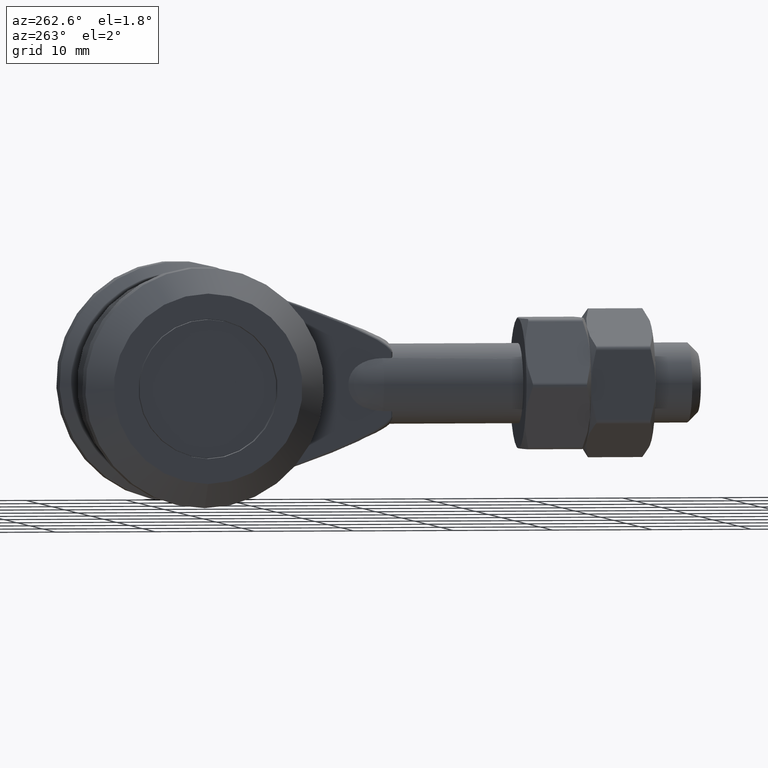
[diagram: clean part render]
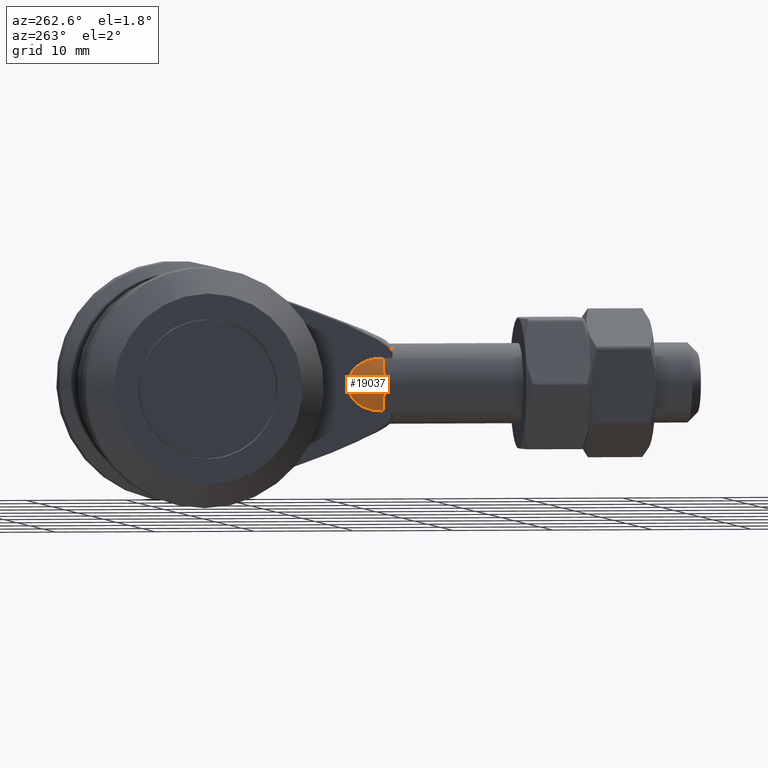
[diagram: same view with one face highlighted and labeled with its STEP entity id]
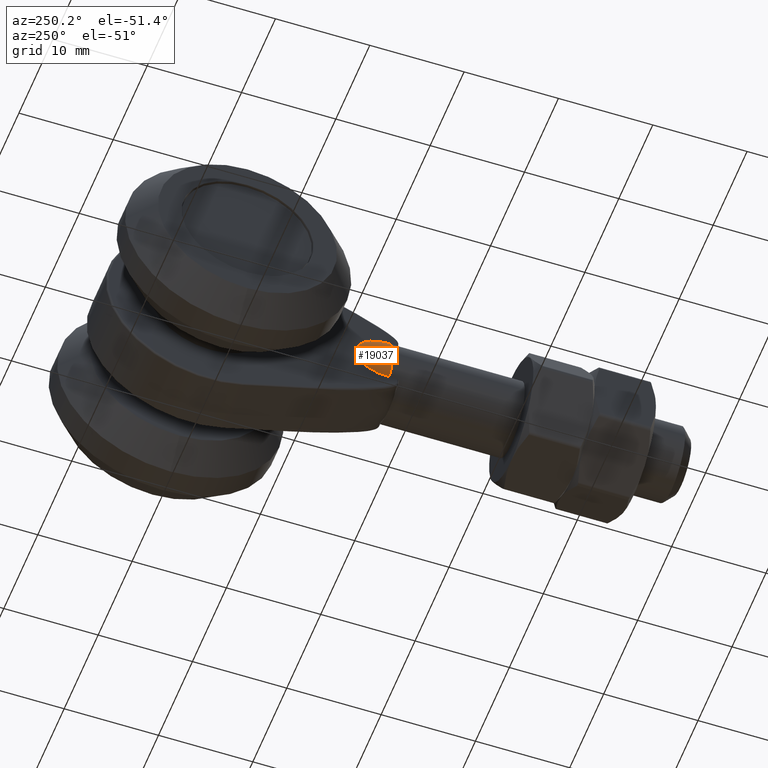
[diagram: same view with one face highlighted and labeled with its STEP entity id]
A machine part, auxiliary view. The second image highlights one B-rep face of the part: STEP entity #19037.
A second angle (auxiliary view) of the same face is appended — the face is thin or edge-on in the first view.
In plain terms, the highlighted face is a freeform B-spline surface patch.
Its self-contained STEP definition (entity closure, byte-faithful):
#23 = FACE_OUTER_BOUND ( 'NONE', #10895, .T. ) ;
#54 = CARTESIAN_POINT ( 'NONE',  ( -2.999999999999999556, 2.292484922831933503, 2.480516872358675240 ) ) ;
#132 = CARTESIAN_POINT ( 'NONE',  ( -2.999966724656594863, 1.000000000000000888, 2.645721993308703723 ) ) ;
#1726 = CARTESIAN_POINT ( 'NONE',  ( -2.801117155337090825, 1.000000000000000888, -2.855475911661004229 ) ) ;
#1819 = CARTESIAN_POINT ( 'NONE',  ( -4.000000000000000000, 5.000000000000000888, -0.5300050929796380483 ) ) ;
#1842 = CARTESIAN_POINT ( 'NONE',  ( -3.000000000000000000, 3.252040014901770970, -2.083968030416484929 ) ) ;
#1914 = CARTESIAN_POINT ( 'NONE',  ( -1.589771477552348378, 5.000000000000000888, 1.242127039715156922 ) ) ;
#1938 = CARTESIAN_POINT ( 'NONE',  ( -2.999999999999999556, 3.344298271523783672, 2.026482346643453170 ) ) ;
#2002 = CARTESIAN_POINT ( 'NONE',  ( -3.893295219945717367, 1.000000000000000888, -1.059791361038660895 ) ) ;
#2024 = CARTESIAN_POINT ( 'NONE',  ( -3.000000000000001332, 3.303120444321818727, -2.052609402434485197 ) ) ;
#2143 = CARTESIAN_POINT ( 'NONE',  ( -3.000000000000000888, 1.208003568990168031, -2.645617139306791099 ) ) ;
#2206 = CARTESIAN_POINT ( 'NONE',  ( -3.000000000000000000, 1.514114254134176774, -2.627898901829841538 ) ) ;
#2294 = CARTESIAN_POINT ( 'NONE',  ( -2.999999999999999556, 1.000000000000000888, -2.645684225185693794 ) ) ;
#3017 = EDGE_CURVE ( 'NONE', #25112, #25360, #13644, .T. ) ;
#3890 = CARTESIAN_POINT ( 'NONE',  ( -3.179542955116319014, 1.000000000000000888, -2.484254079442095975 ) ) ;
#4008 = CARTESIAN_POINT ( 'NONE',  ( -2.999999999999999112, 4.464031913044484767, -0.4311094259676741536 ) ) ;
#4073 = CARTESIAN_POINT ( 'NONE',  ( -1.946647609972841808, 5.000000000000000888, 0.5298956805193257846 ) ) ;
#4172 = CARTESIAN_POINT ( 'NONE',  ( -4.000000000000001776, 1.000000000000000888, 0.5300050929796132904 ) ) ;
#4199 = CARTESIAN_POINT ( 'NONE',  ( -3.000000000000000888, 3.282748533349392428, -2.065211558942082082 ) ) ;
#4298 = CARTESIAN_POINT ( 'NONE',  ( -3.000000000000000444, 4.318707849288117018, 0.8573695871280787584 ) ) ;
#4388 = CARTESIAN_POINT ( 'NONE',  ( -2.999999999999999556, 4.258349620314388240, 0.9950479624394135136 ) ) ;
#5704 = ORIENTED_EDGE ( 'NONE', *, *, #3017, .F. ) ;
#6071 = CARTESIAN_POINT ( 'NONE',  ( -2.801117155337091269, 5.000000000000000888, -2.855475911661004229 ) ) ;
#6187 = CARTESIAN_POINT ( 'NONE',  ( -3.000000000000000888, 4.118911614975183433, -1.256882310745639275 ) ) ;
#6346 = CARTESIAN_POINT ( 'NONE',  ( -3.179542955116301695, 1.000000000000000888, 2.484254079442108409 ) ) ;
#6372 = CARTESIAN_POINT ( 'NONE',  ( -3.000000000000000000, 1.860927717205011378, -2.576220709188743463 ) ) ;
#6456 = CARTESIAN_POINT ( 'NONE',  ( -2.999999999999999556, 3.980548497194730917, -1.460448373147256618 ) ) ;
#6561 = CARTESIAN_POINT ( 'NONE',  ( -3.000000000000000888, 2.116524709059369069, -2.523896539139633965 ) ) ;
#7163 = CARTESIAN_POINT ( 'NONE',  ( -2.999966724656594863, 1.000000000000000888, 2.645721993308703723 ) ) ;
#7455 = CARTESIAN_POINT ( 'NONE',  ( -2.999999999999999556, 1.000000000000000888, -2.645684225185693794 ) ) ;
#8415 = CARTESIAN_POINT ( 'NONE',  ( -3.893295219945684060, 5.000000000000000888, 1.059791361038652013 ) ) ;
#8437 = CARTESIAN_POINT ( 'NONE',  ( -2.999999999999999556, 4.464136415850235906, 0.2149323789062456413 ) ) ;
#8501 = CARTESIAN_POINT ( 'NONE',  ( -3.482946183553531139, 5.000000000000000888, -2.037152738764129278 ) ) ;
#8531 = CARTESIAN_POINT ( 'NONE',  ( -3.000000000000001332, 2.226751610837167217, 2.497452899783727531 ) ) ;
#8711 = CARTESIAN_POINT ( 'NONE',  ( -3.000000000000000000, 2.383321373457846892, 2.455645916619531022 ) ) ;
#9602 = B_SPLINE_CURVE_WITH_KNOTS ( 'NONE', 3,
 ( #132, #26175, #25992, #13170, #21738, #13257, #26084, #17514, #15140, #2294 ),
 .UNSPECIFIED., .F., .F.,
 ( 4, 2, 2, 2, 4 ),
 ( 0.000000000000000000, 0.2500000000000000555, 0.5000000000000001110, 0.7500000000000002220, 1.000000000000000000 ),
 .UNSPECIFIED. ) ;
#10274 = CARTESIAN_POINT ( 'NONE',  ( -3.482946183553597308, 5.000000000000000888, 2.037152738764079096 ) ) ;
#10364 = CARTESIAN_POINT ( 'NONE',  ( -3.893295219945712482, 1.000000000000000888, 1.059791361038663338 ) ) ;
#10534 = CARTESIAN_POINT ( 'NONE',  ( -3.999999999999998224, 1.000000000000000888, -0.5300050929796380483 ) ) ;
#10557 = CARTESIAN_POINT ( 'NONE',  ( -2.999999999999999556, 3.331261948417209240, 2.034845937965227058 ) ) ;
#10649 = CARTESIAN_POINT ( 'NONE',  ( -2.999999999999999556, 3.753617574725310213, -1.725391850318085174 ) ) ;
#10838 = CARTESIAN_POINT ( 'NONE',  ( -3.000000000000000000, 4.191121779834859673, 1.131485341543227774 ) ) ;
#10895 = EDGE_LOOP ( 'NONE', ( #5704, #15906 ) ) ;
#11890 =( BOUNDED_SURFACE ( )  B_SPLINE_SURFACE ( 2, 3, ( 
 ( #14750, #19107, #25334, #20996, #18925, #27766, #4073, #27584, #1914, #16934 ),
 ( #6071, #14664, #8501, #21258, #1819, #23155, #8415, #10274, #12419, #14573 ),
 ( #1726, #3890, #23427, #2002, #10534, #4172, #10364, #16664, #6346, #25608 ) ),
 .UNSPECIFIED., .F., .F., .T. ) 
 B_SPLINE_SURFACE_WITH_KNOTS ( ( 3, 3 ),
 ( 4, 2, 2, 2, 4 ),
 ( 0.000000000000000000, 1.000000000000000000 ),
 ( 3.917381307789929767, 4.314885144087308610, 4.712388980384687898, 5.109892816682066297, 5.507396652979445584 ),
 .UNSPECIFIED. ) 
 GEOMETRIC_REPRESENTATION_ITEM ( )  RATIONAL_B_SPLINE_SURFACE ( (
 ( 1.000000000000000000, 1.000000000000000000, 1.000000000000000000, 1.000000000000000000, 1.000000000000000000, 1.000000000000000000, 1.000000000000000000, 1.000000000000000000, 1.000000000000000000, 1.000000000000000000),
 ( 0.7071067811865475727, 0.7071067811865475727, 0.7071067811865475727, 0.7071067811865475727, 0.7071067811865475727, 0.7071067811865475727, 0.7071067811865475727, 0.7071067811865475727, 0.7071067811865475727, 0.7071067811865475727),
 ( 1.000000000000000000, 1.000000000000000000, 1.000000000000000000, 1.000000000000000000, 1.000000000000000000, 1.000000000000000000, 1.000000000000000000, 1.000000000000000000, 1.000000000000000000, 1.000000000000000000) ) ) 
 REPRESENTATION_ITEM ( '' )  SURFACE ( )  );
#12419 = CARTESIAN_POINT ( 'NONE',  ( -3.179542955104754487, 5.000000000000000888, 2.484254079430373352 ) ) ;
#12808 = CARTESIAN_POINT ( 'NONE',  ( -3.000000000000000444, 3.892686654836617244, 1.582695916894487409 ) ) ;
#12904 = CARTESIAN_POINT ( 'NONE',  ( -3.000000000000000444, 4.070681701545312059, 1.345766521003569638 ) ) ;
#13170 = CARTESIAN_POINT ( 'NONE',  ( -3.912007480033965923, 1.000000000000000666, 0.9635095870317965661 ) ) ;
#13257 = CARTESIAN_POINT ( 'NONE',  ( -4.000000000000001776, 1.000000000000000888, -0.4818228389604209405 ) ) ;
#13644 = B_SPLINE_CURVE_WITH_KNOTS ( 'NONE', 3,
 ( #14993, #2143, #2206, #6372, #27702, #6561, #14686, #19412, #25826, #21285, #17052, #19319, #21559, #1842, #4199, #2024, #17237, #19042, #10649, #6456, #14876, #6187, #19133, #17138, #4008, #8437, #27886, #4298, #4388, #19224, #10838, #12904, #12808, #23548, #21378, #14778, #23457, #1938, #10557, #27798, #23643, #16864, #8711, #54, #25631, #8531, #21473, #23737, #21188, #25723 ),
 .UNSPECIFIED., .F., .F.,
 ( 4, 1, 1, 1, 1, 2, 2, 1, 1, 1, 1, 2, 2, 1, 1, 2, 2, 2, 1, 1, 2, 2, 1, 1, 1, 1, 2, 2, 1, 1, 1, 1, 2, 2, 4 ),
 ( 0.000000000000000000, 0.06249999999999678035, 0.09374999999999512890, 0.1093749999999944073, 0.1171874999999940603, 0.1210937499999939632, 0.1249999999999938660, 0.1874999999999936717, 0.2187499999999936717, 0.2343749999999936995, 0.2421874999999937550, 0.2460937499999936995, 0.2499999999999936717, 0.3124999999999935052, 0.3437499999999933942, 0.3593749999999933387, 0.3749999999999933387, 0.4999999999999936717, 0.5624999999999938938, 0.5937499999999938938, 0.6093749999999940048, 0.6249999999999941158, 0.6874999999999947820, 0.7187499999999950040, 0.7343749999999951150, 0.7421874999999952260, 0.7460937499999952260, 0.7499999999999952260, 0.8124999999999964473, 0.8437499999999971134, 0.8593749999999974465, 0.8671874999999976685, 0.8710937499999977796, 0.8749999999999978906, 1.000000000000000000 ),
 .UNSPECIFIED. ) ;
#14573 = CARTESIAN_POINT ( 'NONE',  ( -2.801117155337108588, 5.000000000000000888, 2.855475911660986910 ) ) ;
#14664 = CARTESIAN_POINT ( 'NONE',  ( -3.179542955104872615, 5.000000000000000888, -2.484254079430424866 ) ) ;
#14686 = CARTESIAN_POINT ( 'NONE',  ( -3.000000000000000444, 2.152716200363653076, -2.515452691592024781 ) ) ;
#14750 = CARTESIAN_POINT ( 'NONE',  ( -1.400558577668545412, 5.000000000000000888, -1.427737955830502337 ) ) ;
#14778 = CARTESIAN_POINT ( 'NONE',  ( -2.999999999999999556, 3.401164422600596815, 1.989067942337424011 ) ) ;
#14876 = CARTESIAN_POINT ( 'NONE',  ( -3.000000000000000888, 4.065241454799650711, -1.339319610169720454 ) ) ;
#14993 = CARTESIAN_POINT ( 'NONE',  ( -2.999999999999999556, 1.000000000000000888, -2.645684225185693794 ) ) ;
#15140 = CARTESIAN_POINT ( 'NONE',  ( -3.318695827693463940, 1.000000000000001554, -2.284384217112759963 ) ) ;
#15906 = ORIENTED_EDGE ( 'NONE', *, *, #21785, .F. ) ;
#16664 = CARTESIAN_POINT ( 'NONE',  ( -3.482946183553569330, 1.000000000000000888, 2.037152738764067550 ) ) ;
#16864 = CARTESIAN_POINT ( 'NONE',  ( -3.000000000000000000, 2.560793617650472864, 2.401808061573941444 ) ) ;
#16934 = CARTESIAN_POINT ( 'NONE',  ( -1.400558577668554072, 5.000000000000000888, 1.427737955830493455 ) ) ;
#17052 = CARTESIAN_POINT ( 'NONE',  ( -2.999999999999999556, 2.713557809624729700, -2.354366725851759323 ) ) ;
#17138 = CARTESIAN_POINT ( 'NONE',  ( -3.000000000000000000, 4.365462956423849405, -0.8202629013050121154 ) ) ;
#17237 = CARTESIAN_POINT ( 'NONE',  ( -3.000000000000000000, 3.311747263051441958, -2.047216761216223091 ) ) ;
#17514 = CARTESIAN_POINT ( 'NONE',  ( -3.571307278484772141, 1.000000000000000888, -1.864917577477774202 ) ) ;
#18925 = CARTESIAN_POINT ( 'NONE',  ( -2.000000000000000000, 5.000000000000000888, -0.2650025464898191907 ) ) ;
#19037 = ADVANCED_FACE ( 'NONE', ( #23 ), #11890, .T. ) ;
#19042 = CARTESIAN_POINT ( 'NONE',  ( -3.000000000000000444, 3.508852747366445701, -1.922160025418641727 ) ) ;
#19107 = CARTESIAN_POINT ( 'NONE',  ( -1.589771477552367696, 5.000000000000000888, -1.242127039715165360 ) ) ;
#19133 = CARTESIAN_POINT ( 'NONE',  ( -3.000000000000000000, 4.143760445482256749, -1.215874690645219580 ) ) ;
#19224 = CARTESIAN_POINT ( 'NONE',  ( -3.000000000000000000, 4.215014167425483294, 1.085611388241475517 ) ) ;
#19319 = CARTESIAN_POINT ( 'NONE',  ( -3.000000000000000000, 3.029698438308601638, -2.208071929674644274 ) ) ;
#19412 = CARTESIAN_POINT ( 'NONE',  ( -3.000000000000001332, 2.176813159835563116, -2.509731177406760327 ) ) ;
#20996 = CARTESIAN_POINT ( 'NONE',  ( -1.946647609972838033, 5.000000000000000888, -0.5298956805193218988 ) ) ;
#21188 = CARTESIAN_POINT ( 'NONE',  ( -2.999999999999999556, 1.415776721443928743, 2.645617139306787546 ) ) ;
#21258 = CARTESIAN_POINT ( 'NONE',  ( -3.893295219945732910, 5.000000000000000888, -1.059791361038643798 ) ) ;
#21285 = CARTESIAN_POINT ( 'NONE',  ( -3.000000000000000000, 2.413654946012142144, -2.451583714329473640 ) ) ;
#21378 = CARTESIAN_POINT ( 'NONE',  ( -2.999999999999999556, 3.478702780265114924, 1.935435300102777312 ) ) ;
#21473 = CARTESIAN_POINT ( 'NONE',  ( -3.000000000000000444, 2.212260402582558960, 2.501072625539312533 ) ) ;
#21559 = CARTESIAN_POINT ( 'NONE',  ( -2.999999999999999556, 3.179332241267835091, -2.126705787514473478 ) ) ;
#21738 = CARTESIAN_POINT ( 'NONE',  ( -4.000000000000000000, 1.000000000000000888, 0.4818228389604141126 ) ) ;
#21785 = EDGE_CURVE ( 'NONE', #25360, #25112, #9602, .T. ) ;
#23155 = CARTESIAN_POINT ( 'NONE',  ( -4.000000000000000000, 5.000000000000000888, 0.5300050929796132904 ) ) ;
#23427 = CARTESIAN_POINT ( 'NONE',  ( -3.482946183553548014, 1.000000000000000888, -2.037152738764111959 ) ) ;
#23457 = CARTESIAN_POINT ( 'NONE',  ( -2.999999999999999556, 3.367149316181887286, 2.011579734981859602 ) ) ;
#23548 = CARTESIAN_POINT ( 'NONE',  ( -3.000000000000000000, 3.626458599677646166, 1.823749511376282717 ) ) ;
#23643 = CARTESIAN_POINT ( 'NONE',  ( -3.000000000000000000, 2.898935477798992189, 2.277748577213554171 ) ) ;
#23737 = CARTESIAN_POINT ( 'NONE',  ( -3.000000000000000444, 1.815859472506031524, 2.598418930729653020 ) ) ;
#25112 = VERTEX_POINT ( 'NONE', #7455 ) ;
#25334 = CARTESIAN_POINT ( 'NONE',  ( -1.741473091776794435, 5.000000000000000888, -1.018576369382064861 ) ) ;
#25360 = VERTEX_POINT ( 'NONE', #7163 ) ;
#25608 = CARTESIAN_POINT ( 'NONE',  ( -2.801117155337108144, 1.000000000000000888, 2.855475911660986910 ) ) ;
#25631 = CARTESIAN_POINT ( 'NONE',  ( -3.000000000000001332, 2.253104945021633831, 2.490737002293238689 ) ) ;
#25723 = CARTESIAN_POINT ( 'NONE',  ( -2.999966724656594863, 1.000000000000000888, 2.645721993308703723 ) ) ;
#25826 = CARTESIAN_POINT ( 'NONE',  ( -3.000000000000000444, 2.187564637285993374, -2.507139209813815217 ) ) ;
#25992 = CARTESIAN_POINT ( 'NONE',  ( -3.571307278484774361, 1.000000000000000666, 1.864917577477768873 ) ) ;
#26084 = CARTESIAN_POINT ( 'NONE',  ( -3.912007480033964146, 1.000000000000001332, -0.9635095870318021172 ) ) ;
#26175 = CARTESIAN_POINT ( 'NONE',  ( -3.318695827693466605, 1.000000000000000222, 2.284384217112754634 ) ) ;
#27584 = CARTESIAN_POINT ( 'NONE',  ( -1.741473091776798432, 5.000000000000000888, 1.018576369382039548 ) ) ;
#27702 = CARTESIAN_POINT ( 'NONE',  ( -3.000000000000000000, 2.031755531341134180, -2.542629883972030491 ) ) ;
#27766 = CARTESIAN_POINT ( 'NONE',  ( -2.000000000000000000, 5.000000000000000888, 0.2650025464898064786 ) ) ;
#27798 = CARTESIAN_POINT ( 'NONE',  ( -3.000000000000000000, 3.159966852377588786, 2.143325406157435165 ) ) ;
#27886 = CARTESIAN_POINT ( 'NONE',  ( -3.000000000000000000, 4.427029064376083234, 0.5232873884772691886 ) ) ;